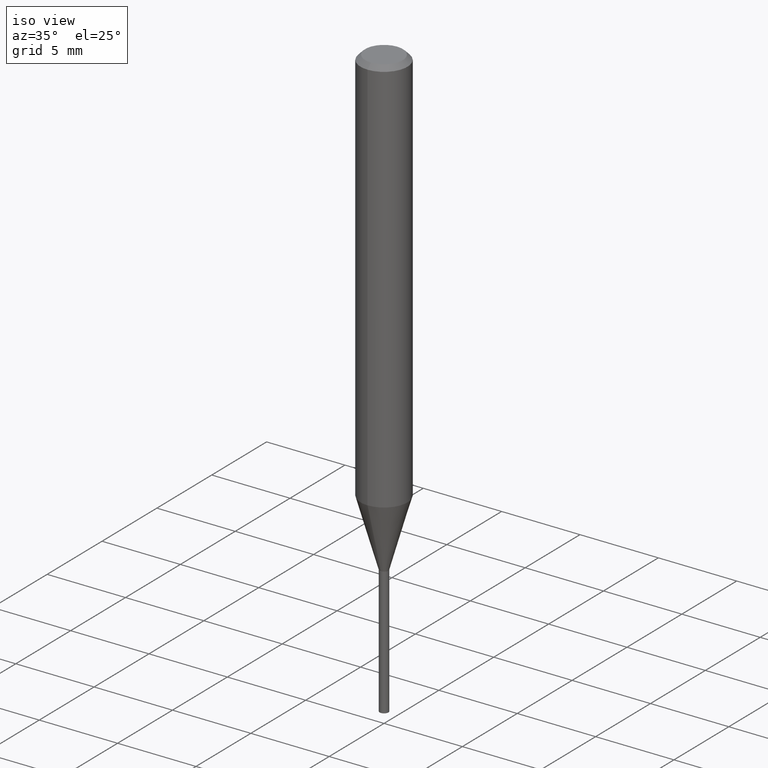
[diagram: clean part render]
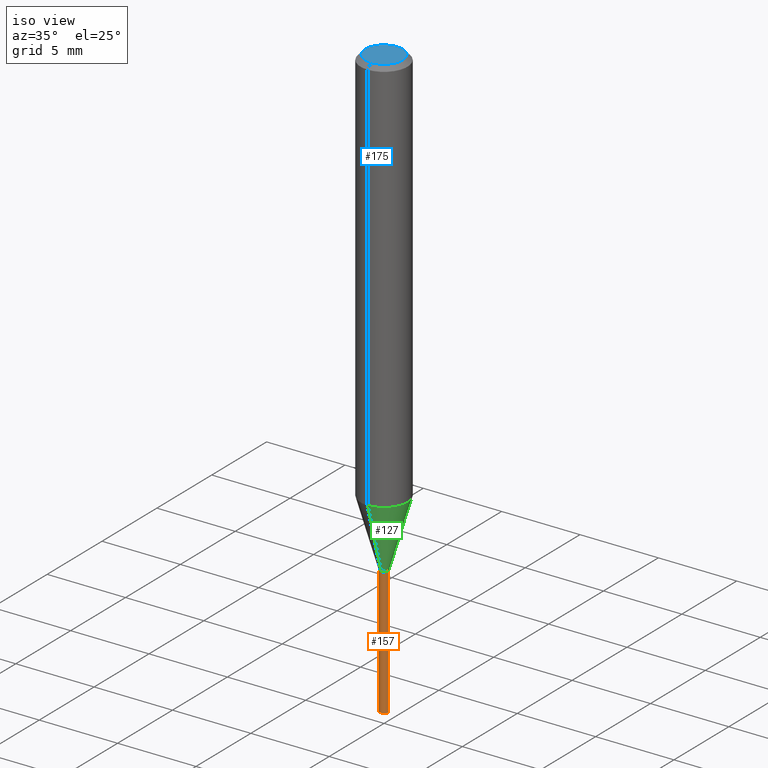
[diagram: same view with three faces highlighted in distinct colors, each labeled with its STEP entity id]
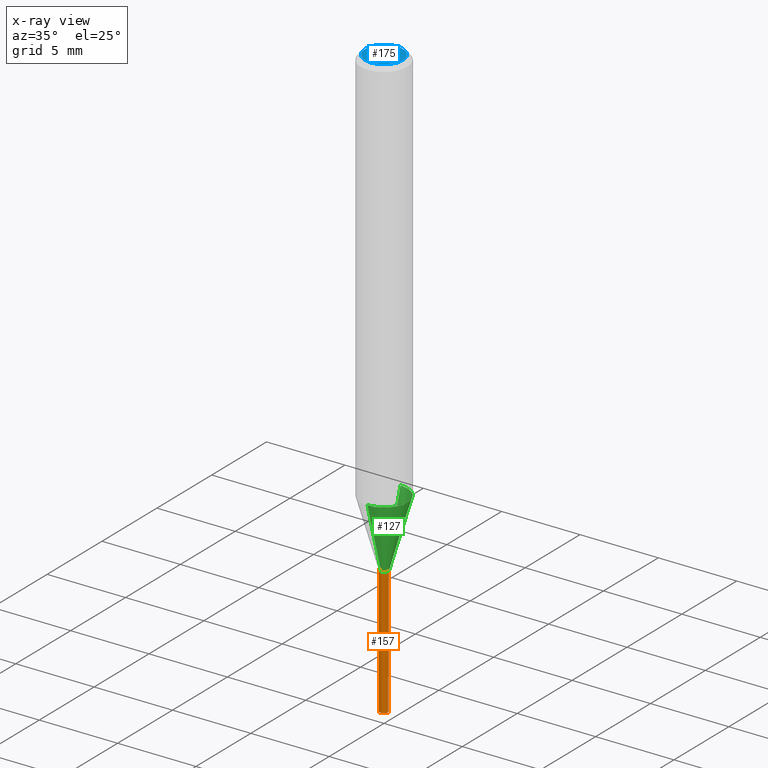
[diagram: x-ray of the same camera — body ghosted, the three highlighted faces saturated]
A machine part, iso view with three faces highlighted in distinct colors.
The next image is the same camera in x-ray (body ghosted, the three faces saturated) — at least one of them is partly hidden behind the body in this view.
Their STEP definitions:

[orange] entity #157 — the highlighted conical surface has half-angle 0.007 deg.
#95=EDGE_CURVE('',#139,#105,#230,.T.);
#97=EDGE_CURVE('',#159,#121,#232,.T.);
#105=VERTEX_POINT('',#240);
#121=VERTEX_POINT('',#257);
#139=VERTEX_POINT('',#277);
#149=EDGE_CURVE('',#159,#139,#289,.T.);
#155=EDGE_CURVE('',#105,#121,#295,.T.);
#157=ADVANCED_FACE('',(#297),#298,.T.);
#159=VERTEX_POINT('',#300);
#230=CIRCLE('',#376,0.276);
#232=CIRCLE('',#379,0.275);
#240=CARTESIAN_POINT('',(-0.276,0.0,-29.7));
#257=CARTESIAN_POINT('',(-0.275,0.0,-37.87176539));
#277=CARTESIAN_POINT('',(0.276,3.37991353654976E-017,-29.7));
#289=LINE('',#453,#454);
#295=LINE('',#463,#464);
#297=FACE_OUTER_BOUND('',#466,.T.);
#298=CONICAL_SURFACE('',#467,0.2755,0.000122372577684627);
#300=CARTESIAN_POINT('',(0.275,3.36766747301154E-017,-37.87176539));
#376=AXIS2_PLACEMENT_3D('',#539,#540,#541);
#379=AXIS2_PLACEMENT_3D('',#542,#543,#544);
#453=CARTESIAN_POINT('',(0.2755,3.37379050478065E-017,-33.785882695));
#454=VECTOR('',#603,1.0);
#463=CARTESIAN_POINT('',(-0.2755,-3.37379050478065E-017,-33.785882695));
#464=VECTOR('',#605,1.0);
#466=EDGE_LOOP('',(#607,#608,#609,#610));
#467=AXIS2_PLACEMENT_3D('',#611,#612,#613);
#539=CARTESIAN_POINT('',(0.0,0.0,-29.7));
#540=DIRECTION('',(0.0,0.0,-1.0));
#541=DIRECTION('',(-1.0,0.0,0.0));
#542=CARTESIAN_POINT('',(0.0,0.0,-37.87176539));
#543=DIRECTION('',(0.0,0.0,-1.0));
#544=DIRECTION('',(-1.0,0.0,0.0));
#603=DIRECTION('',(0.000122372577379204,1.49858235792194E-020,0.999999992512476));
#605=DIRECTION('',(0.000122372577379204,1.49858235792194E-020,-0.999999992512476));
#607=ORIENTED_EDGE('',*,*,#155,.T.);
#608=ORIENTED_EDGE('',*,*,#97,.F.);
#609=ORIENTED_EDGE('',*,*,#149,.T.);
#610=ORIENTED_EDGE('',*,*,#95,.T.);
#611=CARTESIAN_POINT('',(0.0,0.0,-33.785882695));
#612=DIRECTION('',(-0.0,-0.0,1.0));
#613=DIRECTION('',(-1.0,0.0,0.0));

[blue] entity #175 — the highlighted planar face has unit normal (-0, 0, 1).
#133=EDGE_CURVE('',#177,#189,#271,.T.);
#175=ADVANCED_FACE('',(#318),#319,.T.);
#177=VERTEX_POINT('',#321);
#189=VERTEX_POINT('',#336);
#201=EDGE_CURVE('',#189,#177,#351,.T.);
#271=CIRCLE('',#430,1.2);
#318=FACE_OUTER_BOUND('',#492,.T.);
#319=PLANE('',#493);
#321=CARTESIAN_POINT('',(1.46952762458685E-016,-1.2,0.0));
#336=CARTESIAN_POINT('',(0.0,1.2,0.0));
#351=CIRCLE('',#528,1.2);
#430=AXIS2_PLACEMENT_3D('',#579,#580,#581);
#492=EDGE_LOOP('',(#641,#642));
#493=AXIS2_PLACEMENT_3D('',#643,#644,#645);
#528=AXIS2_PLACEMENT_3D('',#697,#698,#699);
#579=CARTESIAN_POINT('',(0.0,0.0,0.0));
#580=DIRECTION('',(0.0,0.0,-1.0));
#581=DIRECTION('',(0.0,1.0,0.0));
#641=ORIENTED_EDGE('',*,*,#201,.F.);
#642=ORIENTED_EDGE('',*,*,#133,.F.);
#643=CARTESIAN_POINT('',(0.0,0.6,0.0));
#644=DIRECTION('',(-0.0,0.0,1.0));
#645=DIRECTION('',(0.0,-1.0,0.0));
#697=CARTESIAN_POINT('',(0.0,0.0,0.0));
#698=DIRECTION('',(0.0,0.0,-1.0));
#699=DIRECTION('',(0.0,1.0,0.0));

[green] entity #127 — the highlighted conical surface has half-angle 16.003 deg.
#127=ADVANCED_FACE('',(#264),#265,.T.);
#129=VERTEX_POINT('',#267);
#141=EDGE_CURVE('',#145,#203,#279,.T.);
#145=VERTEX_POINT('',#284);
#163=EDGE_CURVE('',#145,#129,#304,.T.);
#167=VERTEX_POINT('',#309);
#183=EDGE_CURVE('',#167,#129,#329,.T.);
#203=VERTEX_POINT('',#353);
#205=EDGE_CURVE('',#203,#167,#355,.T.);
#264=FACE_OUTER_BOUND('',#421,.T.);
#265=CONICAL_SURFACE('',#422,0.8875,0.279311533079316);
#267=CARTESIAN_POINT('',(1.83690953073357E-016,-1.5,-25.428));
#279=LINE('',#441,#442);
#284=CARTESIAN_POINT('',(0.0,1.5,-25.428));
#304=CIRCLE('',#475,1.5);
#309=CARTESIAN_POINT('',(3.36766747301154E-017,-0.275,-29.6991339745962));
#329=LINE('',#504,#505);
#353=CARTESIAN_POINT('',(0.0,0.275,-29.6991339745962));
#355=CIRCLE('',#533,0.275);
#421=EDGE_LOOP('',(#569,#570,#571,#572));
#422=AXIS2_PLACEMENT_3D('',#573,#574,#575);
#441=CARTESIAN_POINT('',(-1.08683813901736E-016,0.8875,-27.5635669872981));
#442=VECTOR('',#588,1.0);
#475=AXIS2_PLACEMENT_3D('',#617,#618,#619);
#504=CARTESIAN_POINT('',(1.08683813901736E-016,-0.8875,-27.5635669872981));
#505=VECTOR('',#662,1.0);
#533=AXIS2_PLACEMENT_3D('',#700,#701,#702);
#569=ORIENTED_EDGE('',*,*,#141,.F.);
#570=ORIENTED_EDGE('',*,*,#163,.T.);
#571=ORIENTED_EDGE('',*,*,#183,.F.);
#572=ORIENTED_EDGE('',*,*,#205,.F.);
#573=CARTESIAN_POINT('',(0.0,0.0,-27.5635669872981));
#574=DIRECTION('',(-0.0,-0.0,1.0));
#575=DIRECTION('',(0.0,1.0,0.0));
#588=DIRECTION('',(3.37616536237503E-017,-0.275693928243714,-0.961245472254382));
#617=CARTESIAN_POINT('',(0.0,0.0,-25.428));
#618=DIRECTION('',(0.0,0.0,-1.0));
#619=DIRECTION('',(0.0,1.0,0.0));
#662=DIRECTION('',(3.37616536237503E-017,-0.275693928243714,0.961245472254382));
#700=CARTESIAN_POINT('',(0.0,0.0,-29.6991339745962));
#701=DIRECTION('',(0.0,0.0,-1.0));
#702=DIRECTION('',(0.0,1.0,0.0));